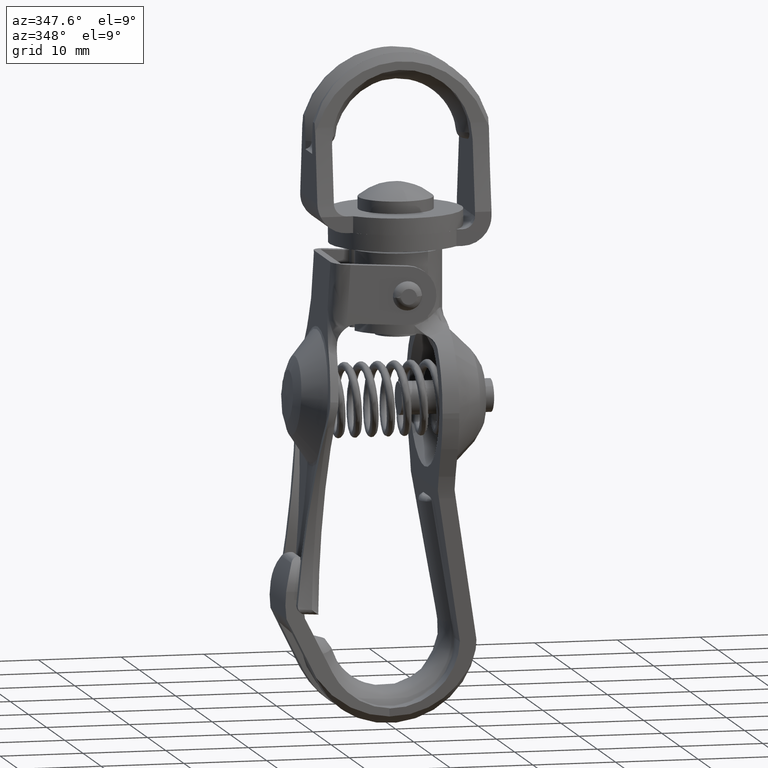
[diagram: clean part render]
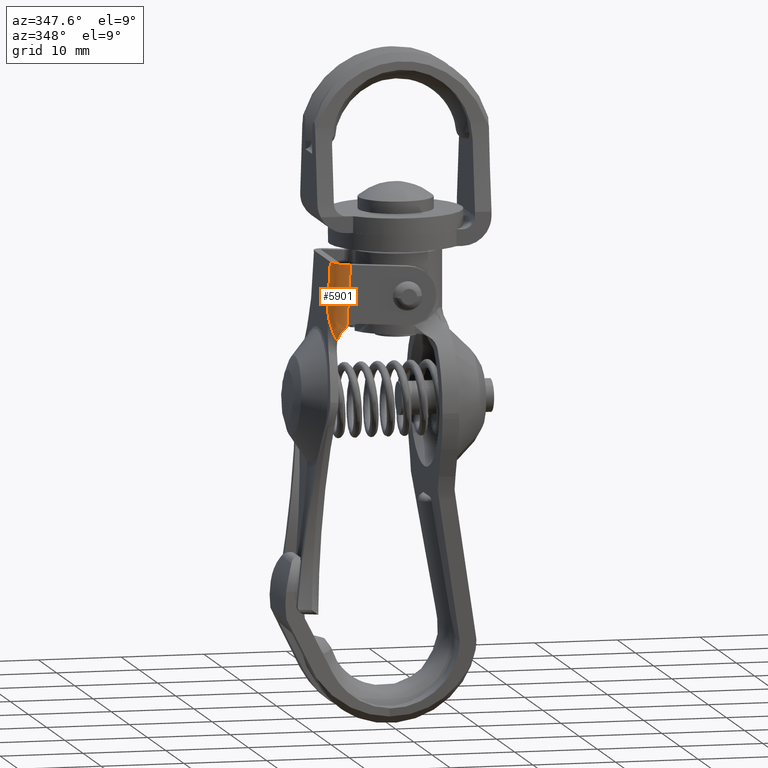
[diagram: same view with one face highlighted and labeled with its STEP entity id]
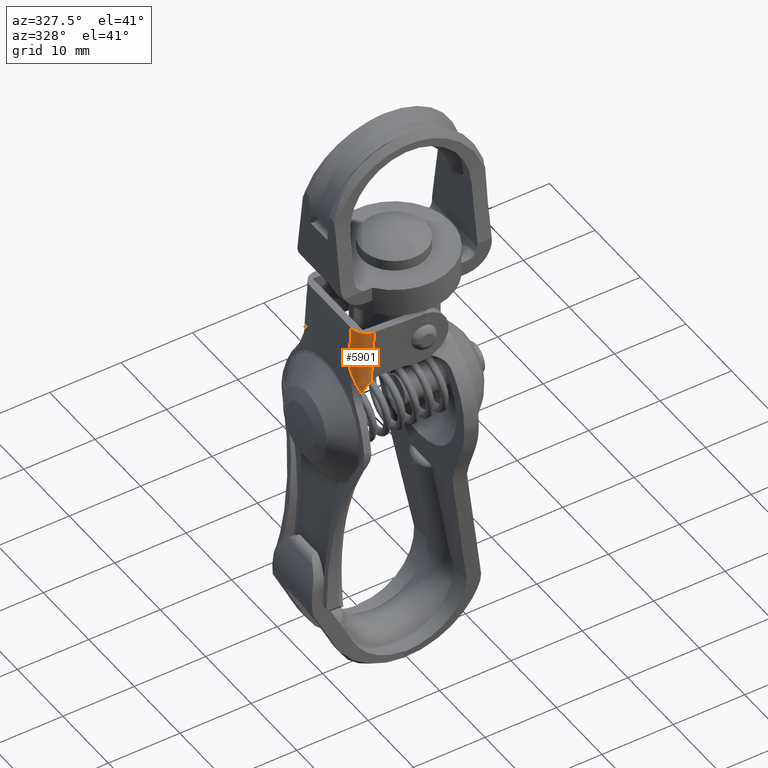
[diagram: same view with one face highlighted and labeled with its STEP entity id]
A machine part, auxiliary view. The second image highlights one B-rep face of the part: STEP entity #5901.
A second angle (auxiliary view) of the same face is appended — the face is thin or edge-on in the first view.
In plain terms, the highlighted face is a freeform B-spline surface patch.
Its self-contained STEP definition (entity closure, byte-faithful):
#5585=CARTESIAN_POINT('',(-8.097425240381989,-6.239882219317090,7.503767288732620));
#5586=VERTEX_POINT('',#5585);
#5596=CARTESIAN_POINT('',(-9.111113999999780,-4.500000000000000,11.061024504884561));
#5597=VERTEX_POINT('',#5596);
#5598=CARTESIAN_POINT('',(-9.111113999999780,-4.500000000000000,11.061024504884561));
#5599=CARTESIAN_POINT('',(-9.111113999999780,-4.595042563921227,10.916664089736850));
#5600=CARTESIAN_POINT('',(-9.104387412611674,-4.686927130326168,10.770799442328860));
#5601=CARTESIAN_POINT('',(-9.079580719784318,-4.864992359616120,10.476300888707060));
#5602=CARTESIAN_POINT('',(-9.061442054678150,-4.951297746510831,10.327427548734200));
#5603=CARTESIAN_POINT('',(-8.992248335179664,-5.200806906709960,9.879862757561231));
#5604=CARTESIAN_POINT('',(-8.926751864605093,-5.355116489448166,9.579540372611822));
#5605=CARTESIAN_POINT('',(-8.801849505192614,-5.571613138198384,9.127197719775909));
#5606=CARTESIAN_POINT('',(-8.755608735794100,-5.641361842096111,8.975886186668564));
#5607=CARTESIAN_POINT('',(-8.654007154330294,-5.775362891481595,8.674788016916914));
#5608=CARTESIAN_POINT('',(-8.598639060699629,-5.839689769091184,8.524857765097496));
#5609=CARTESIAN_POINT('',(-8.477272229738031,-5.963253626319146,8.226919819935922));
#5610=CARTESIAN_POINT('',(-8.411185363293910,-6.022597416077899,8.078626108593497));
#5611=CARTESIAN_POINT('',(-8.265695253471856,-6.135674347245013,7.786645422481000));
#5612=CARTESIAN_POINT('',(-8.186545474661751,-6.189361392194595,7.643079088329087));
#5613=CARTESIAN_POINT('',(-8.097425240381989,-6.239882219317090,7.503767288732620));
#5614=B_SPLINE_CURVE_WITH_KNOTS('',3,(#5598,#5599,#5600,#5601,#5602,#5603,#5604,#5605,#5606,#5607,#5608,#5609,#5610,#5611,#5612,#5613),.UNSPECIFIED.,.F.,.U.,(4,2,2,2,2,2,2,4),(0.0,0.125000000000000,0.250000000000001,0.500000000000001,0.625000000000001,0.750000000000001,0.875000000000000,1.0),.UNSPECIFIED.);
#5615=EDGE_CURVE('',#5597,#5586,#5614,.T.);
#5841=CARTESIAN_POINT('',(-7.023875225269107,-6.498096443163715,7.272798770950935));
#5842=CARTESIAN_POINT('',(-7.023875225269107,-6.498096443163715,16.979250730726228));
#5843=CARTESIAN_POINT('',(-9.263234527656636,-6.595868981816905,7.272798770950935));
#5844=CARTESIAN_POINT('',(-9.263234527656636,-6.595868981816905,16.979250730726221));
#5845=CARTESIAN_POINT('',(-9.106199826542017,-4.359883817029336,7.272798770950934));
#5846=CARTESIAN_POINT('',(-9.106199826542017,-4.359883817029336,16.979250730726228));
#5854=(BOUNDED_SURFACE()B_SPLINE_SURFACE(1,2,((#5841,#5843,#5845),(#5842,#5844,#5846)),.UNSPECIFIED.,.F.,.F.,.U.)B_SPLINE_SURFACE_WITH_KNOTS((2,2),(3,3),(0.0,9.706451959775297),(0.0,3.583485078339785),.UNSPECIFIED.)GEOMETRIC_REPRESENTATION_ITEM()RATIONAL_B_SPLINE_SURFACE(((1.0,0.664513898660680,0.996233561010764),(1.0,0.664513898660680,0.996233561010764)))REPRESENTATION_ITEM('')SURFACE());
#5855=CARTESIAN_POINT('',(-9.111113999999780,-4.500000000000060,16.742508000000001));
#5856=VERTEX_POINT('',#5855);
#5857=CARTESIAN_POINT('',(-9.111113999999780,-4.500000000000000,11.061024504884561));
#5858=CARTESIAN_POINT('',(-9.111113999999780,-4.500000000000060,16.742508000000001));
#5859=QUASI_UNIFORM_CURVE('',1,(#5857,#5858),.UNSPECIFIED.,.F.,.U.);
#5860=EDGE_CURVE('',#5597,#5856,#5859,.T.);
#5861=ORIENTED_EDGE('',*,*,#5860,.F.);
#5862=ORIENTED_EDGE('',*,*,#5615,.T.);
#5863=CARTESIAN_POINT('',(-7.111113999999779,-6.500000000000000,9.242508000000001));
#5864=VERTEX_POINT('',#5863);
#5865=CARTESIAN_POINT('',(-7.111113999999779,-6.500000000000000,9.242508000000001));
#5866=CARTESIAN_POINT('',(-7.251042914565303,-6.500000000000002,9.137561314075867));
#5867=CARTESIAN_POINT('',(-7.376718061652878,-6.485610930922805,9.020670541839433));
#5868=CARTESIAN_POINT('',(-7.545918414833160,-6.453009009831519,8.828016375339836));
#5869=CARTESIAN_POINT('',(-7.599063878618505,-6.440253938054226,8.760883903812879));
#5870=CARTESIAN_POINT('',(-7.698795569911376,-6.412409684289746,8.620548553768746));
#5871=CARTESIAN_POINT('',(-7.744604308587121,-6.397543525587508,8.548436114078672));
#5872=CARTESIAN_POINT('',(-7.870298531871626,-6.352448233246787,8.326482997341012));
#5873=CARTESIAN_POINT('',(-7.938715230645770,-6.321682210044729,8.170969613105907));
#5874=CARTESIAN_POINT('',(-8.044194307183345,-6.269974861885455,7.842415221753126));
#5875=CARTESIAN_POINT('',(-8.079450824666164,-6.250071626429226,7.674823376538466));
#5876=CARTESIAN_POINT('',(-8.097425240381991,-6.239882219317073,7.503767288732622));
#5877=B_SPLINE_CURVE_WITH_KNOTS('',3,(#5865,#5866,#5867,#5868,#5869,#5870,#5871,#5872,#5873,#5874,#5875,#5876),.UNSPECIFIED.,.F.,.U.,(4,2,2,2,2,4),(0.0,0.250000000000000,0.375000000000000,0.500000000000000,0.750000000000000,1.0),.UNSPECIFIED.);
#5878=EDGE_CURVE('',#5864,#5586,#5877,.T.);
#5879=ORIENTED_EDGE('',*,*,#5878,.F.);
#5880=CARTESIAN_POINT('',(-7.111113999999779,-6.500000000000000,16.742508000000001));
#5881=VERTEX_POINT('',#5880);
#5882=CARTESIAN_POINT('',(-7.111113999999779,-6.500000000000000,16.742508000000001));
#5883=CARTESIAN_POINT('',(-7.111113999999779,-6.500000000000000,9.242508000000001));
#5884=QUASI_UNIFORM_CURVE('',1,(#5882,#5883),.UNSPECIFIED.,.F.,.U.);
#5885=EDGE_CURVE('',#5881,#5864,#5884,.T.);
#5886=ORIENTED_EDGE('',*,*,#5885,.F.);
#5887=CARTESIAN_POINT('',(-9.111113999999780,-4.500000000000060,16.742508000000001));
#5888=CARTESIAN_POINT('',(-9.111340393256647,-4.745474178856245,16.742508000000029));
#5889=CARTESIAN_POINT('',(-9.037871374734577,-5.138009127023542,16.742507999999930));
#5890=CARTESIAN_POINT('',(-8.802769266601791,-5.590987015567539,16.742508000000079));
#5891=CARTESIAN_POINT('',(-8.515473343140219,-5.950057525926819,16.742507999999969));
#5892=CARTESIAN_POINT('',(-8.163418744963487,-6.224785181058081,16.742507999999930));
#5893=CARTESIAN_POINT('',(-7.667366525259787,-6.444642146242564,16.742508000000068));
#5894=CARTESIAN_POINT('',(-7.323838091085772,-6.500113555143255,16.742507999999940));
#5895=CARTESIAN_POINT('',(-7.111113999999779,-6.500000000000000,16.742508000000001));
#5896=B_SPLINE_CURVE_WITH_KNOTS('',3,(#5887,#5888,#5889,#5890,#5891,#5892,#5893,#5894,#5895),.UNSPECIFIED.,.F.,.U.,(4,1,1,1,1,1,4),(0.000000172459660,0.736328504920367,1.178149306044415,1.521770043252834,2.110809447121470,2.503528157525540,3.141671488679819),.UNSPECIFIED.);
#5897=EDGE_CURVE('',#5856,#5881,#5896,.T.);
#5898=ORIENTED_EDGE('',*,*,#5897,.F.);
#5899=EDGE_LOOP('',(#5861,#5862,#5879,#5886,#5898));
#5900=FACE_OUTER_BOUND('',#5899,.T.);
#5901=ADVANCED_FACE('',(#5900),#5854,.T.);